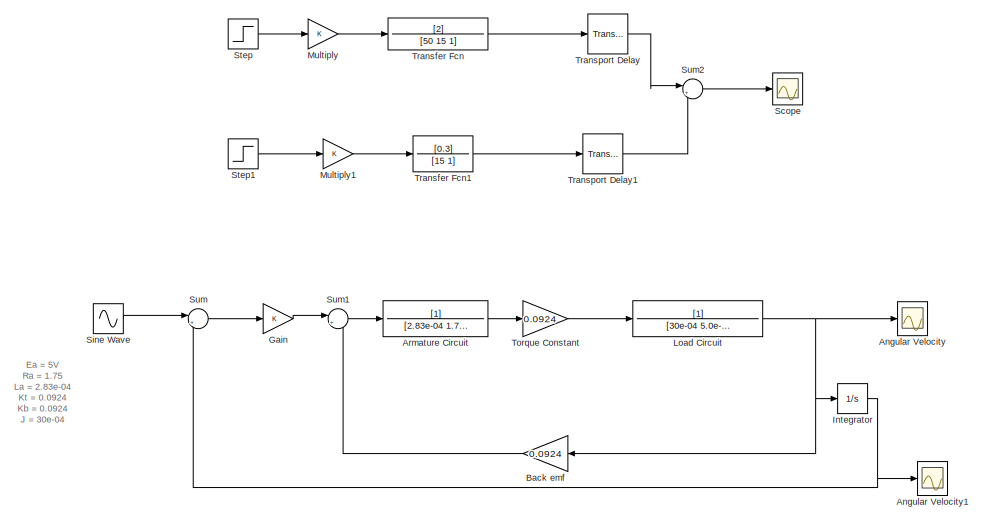
[diagram: root canvas - part 1/3, left side, full height]
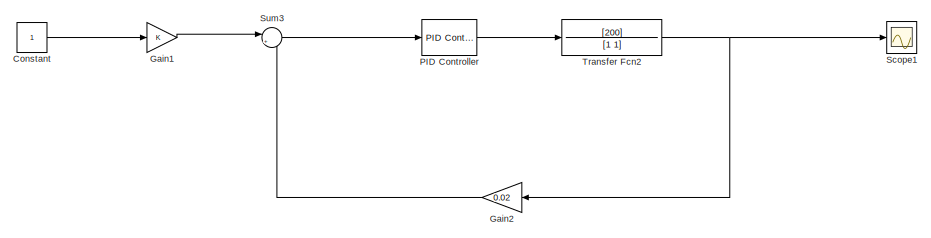
[diagram: root canvas - part 2/3, top right region]
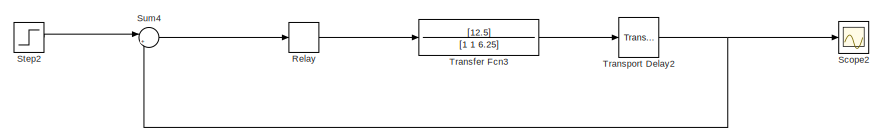
[diagram: root canvas - part 3/3, bottom right region]
MODEL slx_6a9433e20efa
KIND model
CONFIG AbsTol = auto
CONFIG EnableMultiTasking = off
CONFIG FixedStep = auto
CONFIG MaxStep = auto
CONFIG MinStep = auto
CONFIG RelTol = 1e-3
CONFIG SampleTimeConstraint = Unconstrained
CONFIG SolverName = VariableStepAuto
CONFIG StartTime = 0.0
CONFIG StopTime = 10
BLOCK [Scope] Angular Velocity
  Commented = on
  Floating = off
  NumInputPorts = 1
  Ports = [1]
  ScopeSpecificationString = Simulink.scopes.TimeScopeBlockCfg('CurrentConfiguration', extmgr.ConfigurationSet(extmgr.Configuration('Core','General UI',true),extmgr.Configuration('Core','Source UI',true),extmgr.Configuration('Sources','WiredSimulink',true,'DataLogging',true,'DataLoggingSaveFormat','Structure'),extmgr.Configuration('Visuals','Time Domain',true,'SerializedDisplays',{struct('MinYLimReal','-3.34034','MaxYLimReal'...<+1513ch>
BLOCK [Scope] Angular Velocity1
  Commented = on
  Floating = off
  NumInputPorts = 1
  Ports = [1]
  ScopeSpecificationString = Simulink.scopes.TimeScopeBlockCfg('CurrentConfiguration', extmgr.ConfigurationSet(extmgr.Configuration('Core','General UI',true),extmgr.Configuration('Core','Source UI',true),extmgr.Configuration('Sources','WiredSimulink',true,'DataLogging',true,'DataLoggingSaveFormat','Array','DataLoggingVariableName','ScopeData1'),extmgr.Configuration('Visuals','Time Domain',true,'SerializedDisplays',{struct('Mi...<+1571ch>
BLOCK [TransferFcn] Armature Circuit
  Commented = on
  Denominator = [2.83e-04 1.75]
BLOCK [Gain] Back emf
  Commented = on
  Gain = 0.0924
  NameLocation = top
BLOCK [Constant] Constant
  Commented = on
BLOCK [Gain] Gain
  Commented = on
BLOCK [Gain] Gain1
  Commented = on
BLOCK [Gain] Gain2
  Commented = on
  Gain = 0.02
  NameLocation = top
BLOCK [Integrator] Integrator
  Commented = on
  Ports = [1, 1]
BLOCK [TransferFcn] Load Circuit
  Commented = on
  Denominator = [30e-04 5.0e-03]
BLOCK [Gain] Multiply
  Commented = on
BLOCK [Gain] Multiply1
  Commented = on
BLOCK [Reference] PID Controller  REF=slpidlib/PID Controller
  Commented = on
  Ports = [1, 1]
  SourceBlock = slpidlib/PID Controller
  SourceProductBaseCode = SL
  SourceType = PID 1dof
BLOCK [Relay] Relay
BLOCK [Scope] Scope
  Commented = on
  Floating = off
  NumInputPorts = 1
  Ports = [1]
  ScopeSpecificationString = Simulink.scopes.TimeScopeBlockCfg('CurrentConfiguration', extmgr.ConfigurationSet(extmgr.Configuration('Core','General UI',true),extmgr.Configuration('Core','Source UI',true),extmgr.Configuration('Sources','WiredSimulink',true,'DataLoggingVariableName','ScopeData2'),extmgr.Configuration('Visuals','Time Domain',true,'SerializedDisplays',{struct('MinYLimReal','-0.28739','MaxYLimReal','2.58649','YLab...<+1415ch>
BLOCK [Scope] Scope1
  Commented = on
  Floating = off
  NumInputPorts = 1
  Ports = [1]
  ScopeSpecificationString = Simulink.scopes.TimeScopeBlockCfg('CurrentConfiguration', extmgr.ConfigurationSet(extmgr.Configuration('Core','General UI',true),extmgr.Configuration('Core','Source UI',true),extmgr.Configuration('Sources','WiredSimulink',true,'DataLoggingVariableName','ScopeData3'),extmgr.Configuration('Visuals','Time Domain',true,'SerializedDisplays',{struct('MinYLimReal','-5.29707','MaxYLimReal','47.67365','YLa...<+1428ch>
BLOCK [Scope] Scope2
  Floating = off
  NumInputPorts = 1
  Ports = [1]
  ScopeSpecificationString = Simulink.scopes.TimeScopeBlockCfg('CurrentConfiguration', extmgr.ConfigurationSet(extmgr.Configuration('Core','General UI',true),extmgr.Configuration('Core','Source UI',true),extmgr.Configuration('Sources','WiredSimulink',true,'DataLoggingVariableName','ScopeData4'),extmgr.Configuration('Visuals','Time Domain',true),extmgr.Configuration('Tools','Plot Navigation',true),extmgr.Configuration('Tools',...<+40ch>
BLOCK [Sin] Sine Wave
  Commented = on
  Ports = [0, 1]
  SampleTime = 0
BLOCK [Step] Step
  Commented = on
  SampleTime = 0
BLOCK [Step] Step1
  Commented = on
  SampleTime = 0
BLOCK [Step] Step2
  SampleTime = 0
BLOCK [Sum] Sum
  Commented = on
  Inputs = |+-
  Ports = [2, 1]
BLOCK [Sum] Sum1
  Commented = on
  Inputs = |+-
  Ports = [2, 1]
BLOCK [Sum] Sum2
  Commented = on
  Inputs = |++
  Ports = [2, 1]
BLOCK [Sum] Sum3
  Commented = on
  Inputs = |+-
  Ports = [2, 1]
BLOCK [Sum] Sum4
  Inputs = |++
  Ports = [2, 1]
BLOCK [Gain] Torque Constant
  Commented = on
  Gain = 0.0924
BLOCK [TransferFcn] Transfer Fcn
  Commented = on
  Denominator = [50 15 1]
  Numerator = [2]
BLOCK [TransferFcn] Transfer Fcn1
  Commented = on
  Denominator = [15 1]
  Numerator = [0.3]
BLOCK [TransferFcn] Transfer Fcn2
  Commented = on
  Numerator = [200]
BLOCK [TransferFcn] Transfer Fcn3
  Denominator = [1 1 6.25]
  Numerator = [12.5]
BLOCK [TransportDelay] Transport Delay
  Commented = on
  DelayTime = 5
  Ports = [1, 1]
BLOCK [TransportDelay] Transport Delay1
  Commented = on
  DelayTime = 5
  Ports = [1, 1]
BLOCK [TransportDelay] Transport Delay2
  DelayTime = 5
  Ports = [1, 1]
ANNOTATION (root): E a = 5V R a = 1.75 L a = 2.83e-04 K t = 0.0924 K b = 0.0924 J = 30e-04 B = 5e-03
LINE Armature Circuit:1 -> Torque Constant:1
LINE Back emf:1 -> Sum1:2
LINE Constant:1 -> Gain1:1
LINE Gain1:1 -> Sum3:1
LINE Gain2:1 -> Sum3:2
LINE Gain:1 -> Sum1:1
NET Integrator:1 -> Angular Velocity1:1, Sum:2
NET Load Circuit:1 -> Angular Velocity:1, Back emf:1, Integrator:1
LINE Multiply1:1 -> Transfer Fcn1:1
LINE Multiply:1 -> Transfer Fcn:1
LINE PID Controller:1 -> Transfer Fcn2:1
LINE Relay:1 -> Transfer Fcn3:1
LINE Sine Wave:1 -> Sum:1
LINE Step1:1 -> Multiply1:1
LINE Step2:1 -> Sum4:1
LINE Step:1 -> Multiply:1
LINE Sum1:1 -> Armature Circuit:1
LINE Sum2:1 -> Scope:1
LINE Sum3:1 -> PID Controller:1
LINE Sum4:1 -> Relay:1
LINE Sum:1 -> Gain:1
LINE Torque Constant:1 -> Load Circuit:1
LINE Transfer Fcn1:1 -> Transport Delay1:1
NET Transfer Fcn2:1 -> Gain2:1, Scope1:1
LINE Transfer Fcn3:1 -> Transport Delay2:1
LINE Transfer Fcn:1 -> Transport Delay:1
LINE Transport Delay1:1 -> Sum2:2
NET Transport Delay2:1 -> Scope2:1, Sum4:2
LINE Transport Delay:1 -> Sum2:1
note: NET lines group one-source signal fan-out (src -> all destinations, sorted); 1:1 wires keep LINE
